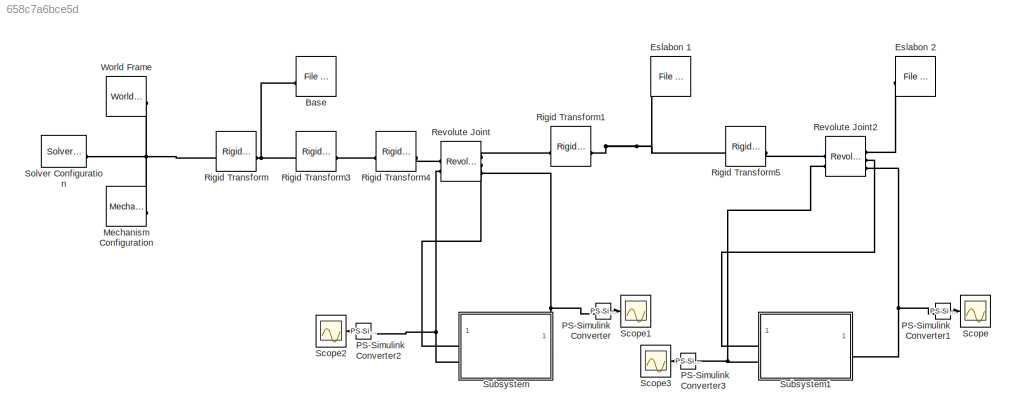
MODEL slx_658c7a6bce5d
KIND model
CONFIG AbsTol = auto
CONFIG EnableMultiTasking = off
CONFIG FixedStep = auto
CONFIG MaxStep = auto
CONFIG MinStep = auto
CONFIG RelTol = 1e-3
CONFIG SampleTimeConstraint = Unconstrained
CONFIG SolverName = VariableStepAuto
CONFIG StartTime = 0.0
CONFIG StopTime = 20
BLOCK [Reference] Base  REF=sm_lib/Body Elements/File Solid
  NameLocation = top
  SourceBlock = sm_lib/Body Elements/File Solid
  SourceType = File Solid
BLOCK [Reference] Eslabon 1  REF=sm_lib/Body Elements/File Solid
  NameLocation = top
  SourceBlock = sm_lib/Body Elements/File Solid
  SourceType = File Solid
BLOCK [Reference] Eslabon 2  REF=sm_lib/Body Elements/File Solid
  SourceBlock = sm_lib/Body Elements/File Solid
  SourceType = File Solid
BLOCK [Reference] Mechanism Configuration  REF=sm_lib/Utilities/Mechanism
Configuration
  SourceBlock = sm_lib/Utilities/Mechanism\nConfiguration
  SourceType = Mechanism\nConfiguration
BLOCK [Reference] PS-Simulink Converter  REF=nesl_utility/PS-Simulink
Converter
  SourceBlock = nesl_utility/PS-Simulink\nConverter
  SourceType = PS-Simulink\nConverter
BLOCK [Reference] PS-Simulink Converter1  REF=nesl_utility/PS-Simulink
Converter
  SourceBlock = nesl_utility/PS-Simulink\nConverter
  SourceType = PS-Simulink\nConverter
BLOCK [Reference] PS-Simulink Converter2  REF=nesl_utility/PS-Simulink
Converter
  NameLocation = top
  SourceBlock = nesl_utility/PS-Simulink\nConverter
  SourceType = PS-Simulink\nConverter
BLOCK [Reference] PS-Simulink Converter3  REF=nesl_utility/PS-Simulink
Converter
  NameLocation = top
  SourceBlock = nesl_utility/PS-Simulink\nConverter
  SourceType = PS-Simulink\nConverter
BLOCK [Reference] Revolute Joint  REF=sm_lib/Joints/Revolute Joint
  SourceBlock = sm_lib/Joints/Revolute Joint
  SourceType = Revolute Joint
BLOCK [Reference] Revolute Joint2  REF=sm_lib/Joints/Revolute Joint
  SourceBlock = sm_lib/Joints/Revolute Joint
  SourceType = Revolute Joint
BLOCK [Reference] Rigid Transform  REF=sm_lib/Frames and
Transforms/Rigid
Transform
  SourceBlock = sm_lib/Frames and\nTransforms/Rigid\nTransform
  SourceType = Rigid\nTransform
BLOCK [Reference] Rigid Transform1  REF=sm_lib/Frames and
Transforms/Rigid
Transform
  SourceBlock = sm_lib/Frames and\nTransforms/Rigid\nTransform
  SourceType = Rigid\nTransform
BLOCK [Reference] Rigid Transform3  REF=sm_lib/Frames and
Transforms/Rigid
Transform
  SourceBlock = sm_lib/Frames and\nTransforms/Rigid\nTransform
  SourceType = Rigid\nTransform
BLOCK [Reference] Rigid Transform4  REF=sm_lib/Frames and
Transforms/Rigid
Transform
  SourceBlock = sm_lib/Frames and\nTransforms/Rigid\nTransform
  SourceType = Rigid\nTransform
BLOCK [Reference] Rigid Transform5  REF=sm_lib/Frames and
Transforms/Rigid
Transform
  SourceBlock = sm_lib/Frames and\nTransforms/Rigid\nTransform
  SourceType = Rigid\nTransform
BLOCK [Scope] Scope
  Floating = off
  NumInputPorts = 1
  ScopeSpecificationString = Simulink.scopes.TimeScopeBlockCfg('CurrentConfiguration', extmgr.ConfigurationSet(extmgr.Configuration('Core','General UI',true),extmgr.Configuration('Core','Source UI',true),extmgr.Configuration('Sources','WiredSimulink',true,'DataLoggingVariableName','ScopeData1'),extmgr.Configuration('Visuals','Time Domain',true,'SerializedDisplays',{struct('MinYLimReal','-0.08833','MaxYLimReal','0.01446','YLab...<+1381ch>
BLOCK [Scope] Scope1
  Floating = off
  NumInputPorts = 1
  ScopeSpecificationString = Simulink.scopes.TimeScopeBlockCfg('CurrentConfiguration', extmgr.ConfigurationSet(extmgr.Configuration('Core','General UI',true),extmgr.Configuration('Core','Source UI',true),extmgr.Configuration('Sources','WiredSimulink',true,'DataLoggingVariableName','ScopeData2'),extmgr.Configuration('Visuals','Time Domain',true,'SerializedDisplays',{struct('MinYLimReal','-0.22085','MaxYLimReal','0.73464','YLab...<+1380ch>
BLOCK [Scope] Scope2
  Floating = off
  NameLocation = top
  NumInputPorts = 1
  ScopeSpecificationString = Simulink.scopes.TimeScopeBlockCfg('CurrentConfiguration', extmgr.ConfigurationSet(extmgr.Configuration('Core','General UI',true),extmgr.Configuration('Core','Source UI',true),extmgr.Configuration('Sources','WiredSimulink',true,'DataLoggingVariableName','ScopeData1'),extmgr.Configuration('Visuals','Time Domain',true,'SerializedDisplays',{struct('MinYLimReal','-0.27828','MaxYLimReal','0.64','YLabelR...<+1369ch>
BLOCK [Scope] Scope3
  Floating = off
  NameLocation = top
  NumInputPorts = 1
  ScopeSpecificationString = Simulink.scopes.TimeScopeBlockCfg('CurrentConfiguration', extmgr.ConfigurationSet(extmgr.Configuration('Core','General UI',true),extmgr.Configuration('Core','Source UI',true),extmgr.Configuration('Sources','WiredSimulink',true,'DataLoggingVariableName','ScopeData2'),extmgr.Configuration('Visuals','Time Domain',true,'SerializedDisplays',{struct('MinYLimReal','-15.46463','MaxYLimReal','1.71829','YLa...<+1385ch>
BLOCK [Reference] Solver Configuration  REF=nesl_utility/Solver
Configuration
  SourceBlock = nesl_utility/Solver\nConfiguration
  SourceType = Solver\nConfiguration
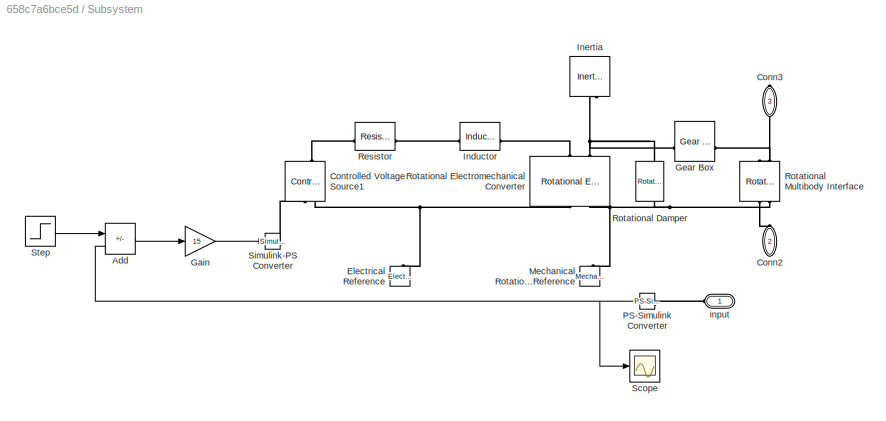
BLOCK [SubSystem] Subsystem
BLOCK [Sum] Subsystem/Add
  IconShape = rectangular
  Inputs = +-
BLOCK [PMIOPort] Subsystem/Conn2
  NameLocation = left
  Port = 2
  Side = Left
BLOCK [PMIOPort] Subsystem/Conn3
  NameLocation = left
  Port = 3
  Side = Right
BLOCK [Reference] Subsystem/Controlled Voltage Source1  REF=fl_lib/Electrical/Electrical Sources/Controlled Voltage
Source
  NameLocation = right
  SourceBlock = fl_lib/Electrical/Electrical Sources/Controlled Voltage\nSource
  SourceType = Controlled Voltage\nSource
BLOCK [Reference] Subsystem/Electrical Reference  REF=fl_lib/Electrical/Electrical Elements/Electrical Reference
  NameLocation = right
  SourceBlock = fl_lib/Electrical/Electrical Elements/Electrical Reference
  SourceType = Electrical Reference
BLOCK [Gain] Subsystem/Gain
  Gain = 15
BLOCK [Reference] Subsystem/Gear Box  REF=fl_lib/Mechanical/Mechanisms/Gear Box
  SourceBlock = fl_lib/Mechanical/Mechanisms/Gear Box
  SourceType = Gear Box
BLOCK [Reference] Subsystem/Inductor  REF=fl_lib/Electrical/Electrical Elements/Inductor
  SourceBlock = fl_lib/Electrical/Electrical Elements/Inductor
  SourceType = Inductor
BLOCK [Reference] Subsystem/Inertia  REF=fl_lib/Mechanical/Rotational Elements/Inertia
  NameLocation = left
  SourceBlock = fl_lib/Mechanical/Rotational Elements/Inertia
  SourceType = Inertia
BLOCK [Reference] Subsystem/Mechanical Rotational Reference  REF=fl_lib/Mechanical/Rotational Elements/Mechanical
Rotational Reference
  NameLocation = right
  SourceBlock = fl_lib/Mechanical/Rotational Elements/Mechanical\nRotational Reference
  SourceType = Mechanical\nRotational Reference
BLOCK [Reference] Subsystem/PS-Simulink Converter  REF=nesl_utility/PS-Simulink
Converter
  NameLocation = top
  SourceBlock = nesl_utility/PS-Simulink\nConverter
  SourceType = PS-Simulink\nConverter
BLOCK [Reference] Subsystem/Resistor  REF=fl_lib/Electrical/Electrical Elements/Resistor
  SourceBlock = fl_lib/Electrical/Electrical Elements/Resistor
  SourceType = Resistor
BLOCK [Reference] Subsystem/Rotational Damper  REF=fl_lib/Mechanical/Rotational Elements/Rotational Damper
  NameLocation = left
  SourceBlock = fl_lib/Mechanical/Rotational Elements/Rotational Damper
  SourceType = Rotational Damper
BLOCK [Reference] Subsystem/Rotational Electromechanical Converter  REF=fl_lib/Electrical/Electrical Elements/Rotational
Electromechanical
Converter
  NameLocation = right
  SourceBlock = fl_lib/Electrical/Electrical Elements/Rotational\nElectromechanical\nConverter
  SourceType = Rotational\nElectromechanical\nConverter
BLOCK [Reference] Subsystem/Rotational Multibody Interface  REF=fl_lib/Mechanical/Multibody Interfaces/Rotational Multibody
Interface
  NameLocation = right
  SourceBlock = fl_lib/Mechanical/Multibody Interfaces/Rotational Multibody\nInterface
  SourceType = Rotational Multibody\nInterface
BLOCK [Scope] Subsystem/Scope
  Floating = off
  NumInputPorts = 1
  ScopeSpecificationString = Simulink.scopes.TimeScopeBlockCfg('CurrentConfiguration', extmgr.ConfigurationSet(extmgr.Configuration('Core','General UI',true),extmgr.Configuration('Core','Source UI',true),extmgr.Configuration('Sources','WiredSimulink',true),extmgr.Configuration('Visuals','Time Domain',true,'SerializedDisplays',{struct('MinYLimReal','-0.14939','MaxYLimReal','1.34453','YLabelReal','','MinYLimMag','0.00000','MaxY...<+1341ch>
BLOCK [Reference] Subsystem/Simulink-PS Converter  REF=nesl_utility/Simulink-PS
Converter
  SourceBlock = nesl_utility/Simulink-PS\nConverter
  SourceType = Simulink-PS\nConverter
BLOCK [Step] Subsystem/Step
  SampleTime = 0
  Time = 0
BLOCK [PMIOPort] Subsystem/input
  NameLocation = top
  Side = Left
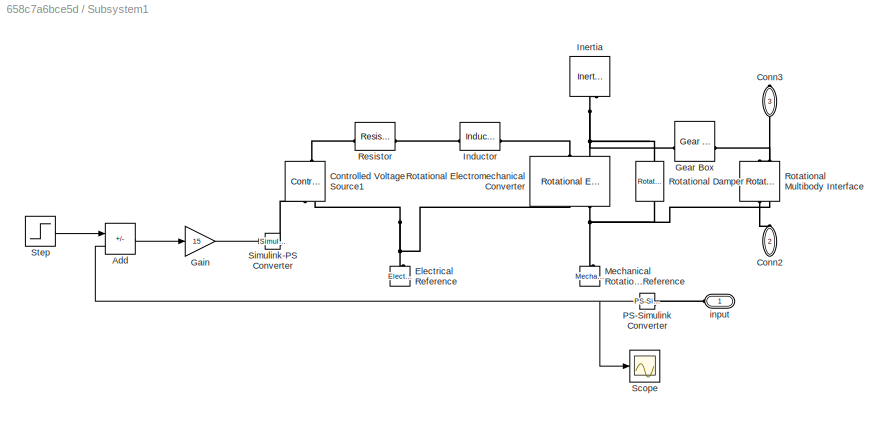
BLOCK [SubSystem] Subsystem1
BLOCK [Sum] Subsystem1/Add
  IconShape = rectangular
  Inputs = +-
BLOCK [PMIOPort] Subsystem1/Conn2
  NameLocation = left
  Port = 2
  Side = Left
BLOCK [PMIOPort] Subsystem1/Conn3
  NameLocation = left
  Port = 3
  Side = Right
BLOCK [Reference] Subsystem1/Controlled Voltage Source1  REF=fl_lib/Electrical/Electrical Sources/Controlled Voltage
Source
  NameLocation = right
  SourceBlock = fl_lib/Electrical/Electrical Sources/Controlled Voltage\nSource
  SourceType = Controlled Voltage\nSource
BLOCK [Reference] Subsystem1/Electrical Reference  REF=fl_lib/Electrical/Electrical Elements/Electrical Reference
  NameLocation = right
  SourceBlock = fl_lib/Electrical/Electrical Elements/Electrical Reference
  SourceType = Electrical Reference
BLOCK [Gain] Subsystem1/Gain
  Gain = 15
BLOCK [Reference] Subsystem1/Gear Box  REF=fl_lib/Mechanical/Mechanisms/Gear Box
  SourceBlock = fl_lib/Mechanical/Mechanisms/Gear Box
  SourceType = Gear Box
BLOCK [Reference] Subsystem1/Inductor  REF=fl_lib/Electrical/Electrical Elements/Inductor
  SourceBlock = fl_lib/Electrical/Electrical Elements/Inductor
  SourceType = Inductor
BLOCK [Reference] Subsystem1/Inertia  REF=fl_lib/Mechanical/Rotational Elements/Inertia
  NameLocation = left
  SourceBlock = fl_lib/Mechanical/Rotational Elements/Inertia
  SourceType = Inertia
BLOCK [Reference] Subsystem1/Mechanical Rotational Reference  REF=fl_lib/Mechanical/Rotational Elements/Mechanical
Rotational Reference
  NameLocation = right
  SourceBlock = fl_lib/Mechanical/Rotational Elements/Mechanical\nRotational Reference
  SourceType = Mechanical\nRotational Reference
BLOCK [Reference] Subsystem1/PS-Simulink Converter  REF=nesl_utility/PS-Simulink
Converter
  NameLocation = top
  SourceBlock = nesl_utility/PS-Simulink\nConverter
  SourceType = PS-Simulink\nConverter
BLOCK [Reference] Subsystem1/Resistor  REF=fl_lib/Electrical/Electrical Elements/Resistor
  SourceBlock = fl_lib/Electrical/Electrical Elements/Resistor
  SourceType = Resistor
BLOCK [Reference] Subsystem1/Rotational Damper  REF=fl_lib/Mechanical/Rotational Elements/Rotational Damper
  NameLocation = left
  SourceBlock = fl_lib/Mechanical/Rotational Elements/Rotational Damper
  SourceType = Rotational Damper
BLOCK [Reference] Subsystem1/Rotational Electromechanical Converter  REF=fl_lib/Electrical/Electrical Elements/Rotational
Electromechanical
Converter
  NameLocation = right
  SourceBlock = fl_lib/Electrical/Electrical Elements/Rotational\nElectromechanical\nConverter
  SourceType = Rotational\nElectromechanical\nConverter
BLOCK [Reference] Subsystem1/Rotational Multibody Interface  REF=fl_lib/Mechanical/Multibody Interfaces/Rotational Multibody
Interface
  NameLocation = right
  SourceBlock = fl_lib/Mechanical/Multibody Interfaces/Rotational Multibody\nInterface
  SourceType = Rotational Multibody\nInterface
BLOCK [Scope] Subsystem1/Scope
  Floating = off
  NumInputPorts = 1
  ScopeSpecificationString = Simulink.scopes.TimeScopeBlockCfg('CurrentConfiguration', extmgr.ConfigurationSet(extmgr.Configuration('Core','General UI',true),extmgr.Configuration('Core','Source UI',true),extmgr.Configuration('Sources','WiredSimulink',true),extmgr.Configuration('Visuals','Time Domain',true,'SerializedDisplays',{struct('MinYLimReal','1.17971','MaxYLimReal','1.61443','YLabelReal','','MinYLimMag','1.17971','MaxYL...<+1368ch>
BLOCK [Reference] Subsystem1/Simulink-PS Converter  REF=nesl_utility/Simulink-PS
Converter
  SourceBlock = nesl_utility/Simulink-PS\nConverter
  SourceType = Simulink-PS\nConverter
BLOCK [Step] Subsystem1/Step
  After = (pi/4)*0.1
  SampleTime = 0
  Time = 0
BLOCK [PMIOPort] Subsystem1/input
  NameLocation = top
  Side = Left
BLOCK [Reference] World Frame  REF=sm_lib/Frames and
Transforms/World Frame
  SourceBlock = sm_lib/Frames and\nTransforms/World Frame
  SourceType = World Frame
LINE PS-Simulink Converter1:1 -> Scope:1
LINE PS-Simulink Converter2:1 -> Scope2:1
LINE PS-Simulink Converter3:1 -> Scope3:1
LINE PS-Simulink Converter:1 -> Scope1:1
LINE Subsystem/Add:1 -> Subsystem/Gain:1
LINE Subsystem/Gain:1 -> Subsystem/Simulink-PS Converter:1
NET Subsystem/PS-Simulink Converter:1 -> Subsystem/Add:2, Subsystem/Scope:1
LINE Subsystem/Step:1 -> Subsystem/Add:1
LINE Subsystem1/Add:1 -> Subsystem1/Gain:1
LINE Subsystem1/Gain:1 -> Subsystem1/Simulink-PS Converter:1
NET Subsystem1/PS-Simulink Converter:1 -> Subsystem1/Add:2, Subsystem1/Scope:1
LINE Subsystem1/Step:1 -> Subsystem1/Add:1
PNET net1: Base:RConn1 -- Rigid Transform3:LConn1 -- Rigid Transform:RConn1
PNET net2: Eslabon 1:RConn1 -- Rigid Transform1:RConn1 -- Rigid Transform5:LConn1
PLINE Eslabon 2:LConn1 -- Revolute Joint2:RConn1
PNET net3: Mechanism Configuration:RConn1 -- Rigid Transform:LConn1 -- Solver Configuration:RConn1 -- World Frame:RConn1
PNET net4: PS-Simulink Converter1:LConn1 -- Revolute Joint2:RConn3 -- Subsystem1:RConn1
PNET net5: PS-Simulink Converter2:LConn1 -- Revolute Joint:LConn2 -- Subsystem:LConn2
PNET net6: PS-Simulink Converter3:LConn1 -- Revolute Joint2:LConn2 -- Subsystem1:LConn2
PNET net7: PS-Simulink Converter:LConn1 -- Revolute Joint:RConn3 -- Subsystem:RConn1
PLINE Revolute Joint2:LConn1 -- Rigid Transform5:RConn1
PLINE Revolute Joint2:RConn2 -- Subsystem1:LConn1
PLINE Revolute Joint:LConn1 -- Rigid Transform4:RConn1
PLINE Revolute Joint:RConn1 -- Rigid Transform1:LConn1
PLINE Revolute Joint:RConn2 -- Subsystem:LConn1
PLINE Rigid Transform3:RConn1 -- Rigid Transform4:LConn1
PLINE Subsystem/Conn2:RConn1 -- Subsystem/Rotational Multibody Interface:LConn1
PLINE Subsystem/Conn3:RConn1 -- Subsystem/Rotational Multibody Interface:RConn1
PLINE Subsystem/Controlled Voltage Source1:LConn1 -- Subsystem/Resistor:LConn1
PLINE Subsystem/Controlled Voltage Source1:RConn1 -- Subsystem/Simulink-PS Converter:RConn1
PNET net8: Subsystem/Controlled Voltage Source1:RConn2 -- Subsystem/Electrical Reference:LConn1 -- Subsystem/Rotational Electromechanical Converter:RConn1
PNET net9: Subsystem/Gear Box:LConn1 -- Subsystem/Inertia:LConn1 -- Subsystem/Rotational Damper:LConn1 -- Subsystem/Rotational Electromechanical Converter:LConn2
PLINE Subsystem/Gear Box:RConn1 -- Subsystem/Rotational Multibody Interface:RConn2
PLINE Subsystem/Inductor:LConn1 -- Subsystem/Resistor:RConn1
PLINE Subsystem/Inductor:RConn1 -- Subsystem/Rotational Electromechanical Converter:LConn1
PNET net10: Subsystem/Mechanical Rotational Reference:LConn1 -- Subsystem/Rotational Damper:RConn1 -- Subsystem/Rotational Electromechanical Converter:RConn2 -- Subsystem/Rotational Multibody Interface:LConn2
PLINE Subsystem/PS-Simulink Converter:LConn1 -- Subsystem/input:RConn1
PLINE Subsystem1/Conn2:RConn1 -- Subsystem1/Rotational Multibody Interface:LConn1
PLINE Subsystem1/Conn3:RConn1 -- Subsystem1/Rotational Multibody Interface:RConn1
PLINE Subsystem1/Controlled Voltage Source1:LConn1 -- Subsystem1/Resistor:LConn1
PLINE Subsystem1/Controlled Voltage Source1:RConn1 -- Subsystem1/Simulink-PS Converter:RConn1
PNET net11: Subsystem1/Controlled Voltage Source1:RConn2 -- Subsystem1/Electrical Reference:LConn1 -- Subsystem1/Rotational Electromechanical Converter:RConn1
PNET net12: Subsystem1/Gear Box:LConn1 -- Subsystem1/Inertia:LConn1 -- Subsystem1/Rotational Damper:LConn1 -- Subsystem1/Rotational Electromechanical Converter:LConn2
PLINE Subsystem1/Gear Box:RConn1 -- Subsystem1/Rotational Multibody Interface:RConn2
PLINE Subsystem1/Inductor:LConn1 -- Subsystem1/Resistor:RConn1
PLINE Subsystem1/Inductor:RConn1 -- Subsystem1/Rotational Electromechanical Converter:LConn1
PNET net13: Subsystem1/Mechanical Rotational Reference:LConn1 -- Subsystem1/Rotational Damper:RConn1 -- Subsystem1/Rotational Electromechanical Converter:RConn2 -- Subsystem1/Rotational Multibody Interface:LConn2
PLINE Subsystem1/PS-Simulink Converter:LConn1 -- Subsystem1/input:RConn1
note: NET lines group one-source signal fan-out (src -> all destinations, sorted); 1:1 wires keep LINE; PNET lines group multi-terminal physical nets as a canonical sorted terminal list (undirected conserving connections); 2-terminal nets keep the pairwise PLINE form
